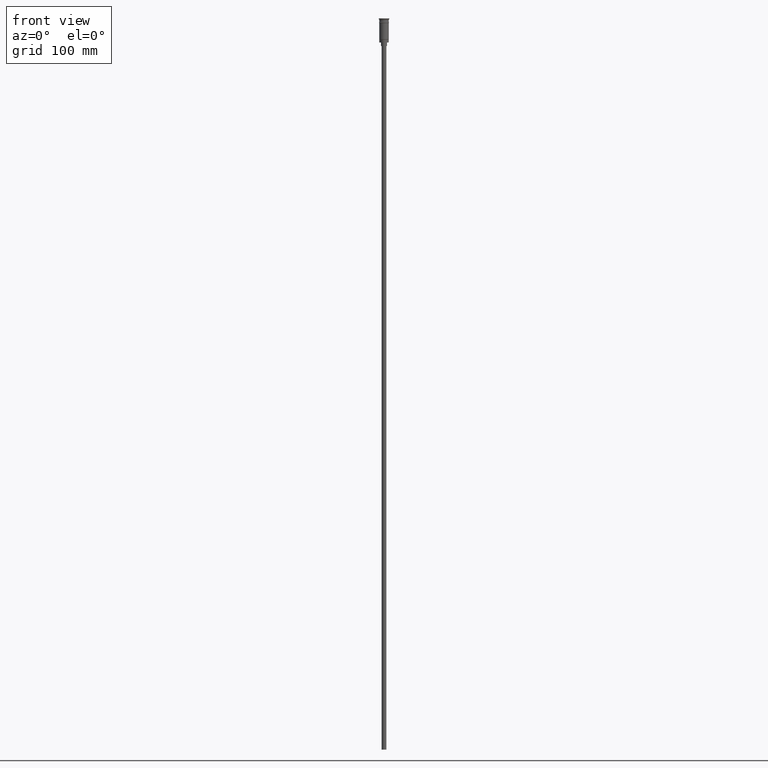
[diagram: clean part render]
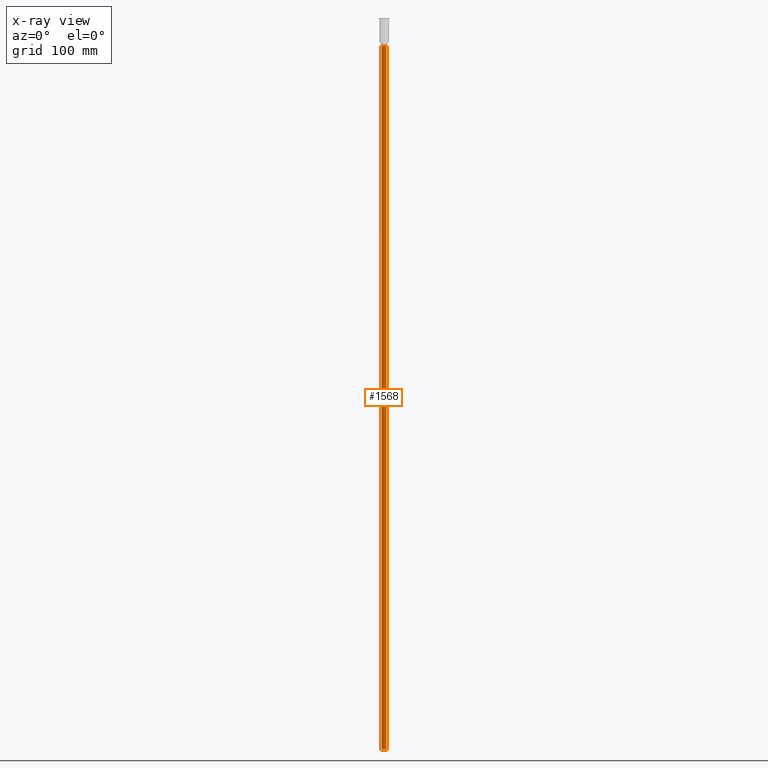
[diagram: x-ray — body ghosted, one internal face saturated and labeled with its STEP entity id]
A machine part, front view, then the same camera in x-ray: the body is ghosted and one INTERNAL B-rep face — a face not visible from any outside direction — is saturated and labeled: STEP entity #1568.
In plain terms, the highlighted cylindrical surface (edge-blend (fillet) strip) has radius 2 mm, axis along (-0, -0, 1).
Its self-contained STEP definition (entity closure, byte-faithful):
#32 = CIRCLE ( 'NONE', #948, 2.000000000000000000 ) ;
#45 = EDGE_CURVE ( 'NONE', #1061, #48, #933, .T. ) ;
#48 = VERTEX_POINT ( 'NONE', #103 ) ;
#54 = CARTESIAN_POINT ( 'NONE',  ( 2.000000000000000000, 0.000000000000000000, -620.4999999999998863 ) ) ;
#79 = VERTEX_POINT ( 'NONE', #1449 ) ;
#103 = CARTESIAN_POINT ( 'NONE',  ( 2.000000000000000000, 0.000000000000000000, -23.49999999999999645 ) ) ;
#150 = CARTESIAN_POINT ( 'NONE',  ( 0.000000000000000000, 0.000000000000000000, -620.4999999999998863 ) ) ;
#208 = CARTESIAN_POINT ( 'NONE',  ( 2.000000000000000000, 0.000000000000000000, -620.4999999999998863 ) ) ;
#304 = EDGE_LOOP ( 'NONE', ( #395, #610, #1036, #804 ) ) ;
#329 = AXIS2_PLACEMENT_3D ( 'NONE', #1064, #1074, #1587 ) ;
#395 = ORIENTED_EDGE ( 'NONE', *, *, #1197, .F. ) ;
#471 = EDGE_CURVE ( 'NONE', #1061, #1119, #32, .T. ) ;
#498 = CARTESIAN_POINT ( 'NONE',  ( -2.000000000000000000, 2.449293598294706414E-16, -620.4999999999998863 ) ) ;
#561 = LINE ( 'NONE', #815, #1120 ) ;
#610 = ORIENTED_EDGE ( 'NONE', *, *, #471, .F. ) ;
#768 = AXIS2_PLACEMENT_3D ( 'NONE', #1092, #1438, #841 ) ;
#804 = ORIENTED_EDGE ( 'NONE', *, *, #1554, .T. ) ;
#815 = CARTESIAN_POINT ( 'NONE',  ( -2.000000000000000000, 2.449293598294706414E-16, -620.4999999999998863 ) ) ;
#841 = DIRECTION ( 'NONE',  ( -1.000000000000000000, 0.000000000000000000, 0.000000000000000000 ) ) ;
#933 = LINE ( 'NONE', #208, #1265 ) ;
#946 = DIRECTION ( 'NONE',  ( -0.000000000000000000, -0.000000000000000000, 1.000000000000000000 ) ) ;
#948 = AXIS2_PLACEMENT_3D ( 'NONE', #150, #1388, #1233 ) ;
#1036 = ORIENTED_EDGE ( 'NONE', *, *, #45, .T. ) ;
#1061 = VERTEX_POINT ( 'NONE', #54 ) ;
#1064 = CARTESIAN_POINT ( 'NONE',  ( 0.000000000000000000, 0.000000000000000000, -620.4999999999998863 ) ) ;
#1074 = DIRECTION ( 'NONE',  ( -0.000000000000000000, -0.000000000000000000, 1.000000000000000000 ) ) ;
#1092 = CARTESIAN_POINT ( 'NONE',  ( 0.000000000000000000, 0.000000000000000000, -23.49999999999999645 ) ) ;
#1119 = VERTEX_POINT ( 'NONE', #498 ) ;
#1120 = VECTOR ( 'NONE', #946, 1000.000000000000000 ) ;
#1185 = DIRECTION ( 'NONE',  ( -0.000000000000000000, -0.000000000000000000, 1.000000000000000000 ) ) ;
#1197 = EDGE_CURVE ( 'NONE', #1119, #79, #561, .T. ) ;
#1200 = CYLINDRICAL_SURFACE ( 'NONE', #329, 2.000000000000000000 ) ;
#1233 = DIRECTION ( 'NONE',  ( -1.000000000000000000, 0.000000000000000000, 0.000000000000000000 ) ) ;
#1265 = VECTOR ( 'NONE', #1185, 1000.000000000000000 ) ;
#1327 = FACE_OUTER_BOUND ( 'NONE', #304, .T. ) ;
#1388 = DIRECTION ( 'NONE',  ( 0.000000000000000000, 0.000000000000000000, -1.000000000000000000 ) ) ;
#1438 = DIRECTION ( 'NONE',  ( 0.000000000000000000, 0.000000000000000000, -1.000000000000000000 ) ) ;
#1449 = CARTESIAN_POINT ( 'NONE',  ( -2.000000000000000000, 2.449293598294706414E-16, -23.49999999999999645 ) ) ;
#1485 = CIRCLE ( 'NONE', #768, 2.000000000000000000 ) ;
#1554 = EDGE_CURVE ( 'NONE', #48, #79, #1485, .T. ) ;
#1568 = ADVANCED_FACE ( 'NONE', ( #1327 ), #1200, .T. ) ;
#1587 = DIRECTION ( 'NONE',  ( 1.000000000000000000, 0.000000000000000000, 0.000000000000000000 ) ) ;